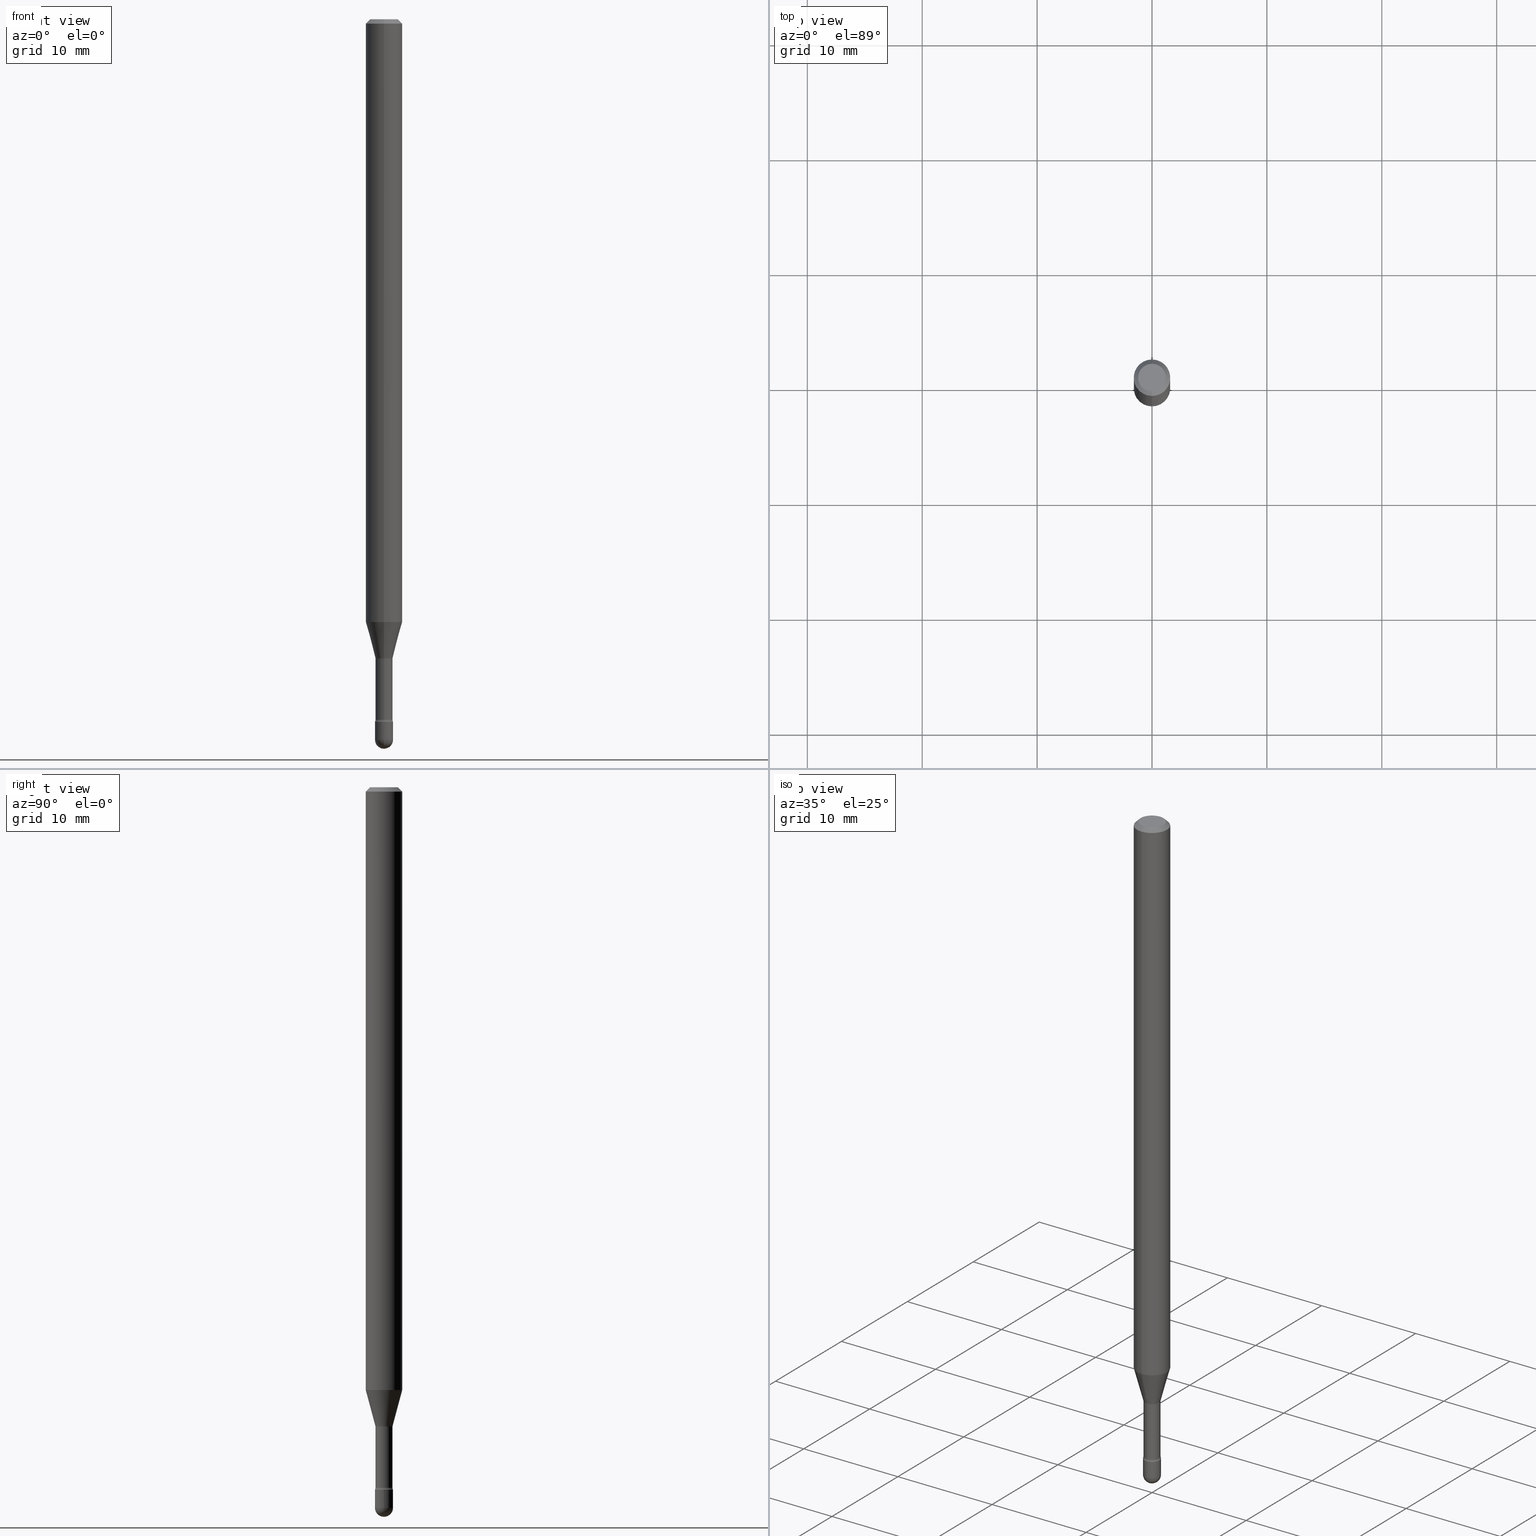
[diagram: canonical four-view strip — front | top / right | iso, engineering-drawing reading convention]
A machine part, canonical four-view strip (front | top / right | iso — engineering-drawing reading convention). The complete STEP part file that produces these views, byte-faithful:
ISO-10303-21;
HEADER;
FILE_DESCRIPTION (( 'STEP AP203' ),
    '1' );
FILE_NAME ('03845.STEP',
    '2024-04-09T20:43:29',
    ( '' ),
    ( '' ),
    'SwSTEP 2.0',
    'SolidWorks 2023',
    '' );
FILE_SCHEMA (( 'CONFIG_CONTROL_DESIGN' ));
ENDSEC;

DATA;
#1 = VECTOR ( 'NONE', #555, 39.37007874015748143 ) ;
#2 = CONICAL_SURFACE ( 'NONE', #314, 0.06250000000000000000, 0.7853981633974483900 ) ;
#3 = CARTESIAN_POINT ( 'NONE',  ( 5.350888010977423347E-29, -7.639718431393304776E-15, -2.188092501787273214 ) ) ;
#4 = DIRECTION ( 'NONE',  ( -1.000000000000000000, 6.982962677686265922E-15, -4.883557194083112901E-29 ) ) ;
#5 = EDGE_CURVE ( 'NONE', #377, #417, #144, .T. ) ;
#6 = ORIENTED_EDGE ( 'NONE', *, *, #319, .F. ) ;
#7 = TOROIDAL_SURFACE ( 'NONE', #420, 0.04415000000000002950, 0.01500000000000001159 ) ;
#8 = MANIFOLD_SOLID_BREP ( 'Body-Move/Copy2[2]', #532 ) ;
#9 = DIMENSIONAL_EXPONENTS ( 1.000000000000000000, 0.000000000000000000, 0.000000000000000000, 0.000000000000000000, 0.000000000000000000, 0.000000000000000000, 0.000000000000000000 ) ;
#10 = DATE_AND_TIME ( #92, #375 ) ;
#11 = COORDINATED_UNIVERSAL_TIME_OFFSET ( 5, 0, .BEHIND. ) ;
#12 = CC_DESIGN_PERSON_AND_ORGANIZATION_ASSIGNMENT ( #44, #398, ( #110 ) ) ;
#13 = CALENDAR_DATE ( 2024, 9, 4 ) ;
#14 = CARTESIAN_POINT ( 'NONE',  ( -2.071224423039476583E-16, -0.02966111260567161692, -2.188092501787273214 ) ) ;
#15 = VECTOR ( 'NONE', #407, 39.37007874015748143 ) ;
#16 = DIRECTION ( 'NONE',  ( 1.000000000000000000, -6.982962677686270655E-15, 0.000000000000000000 ) ) ;
#17 = DIRECTION ( 'NONE',  ( 6.982962677686265922E-15, 1.000000000000000000, -3.483106191921935554E-15 ) ) ;
#18 = APPROVAL ( #485, 'UNSPECIFIED' ) ;
#19 = MANIFOLD_SOLID_BREP ( 'Body-Move/Copy2[1]', #125 ) ;
#20 = CARTESIAN_POINT ( 'NONE',  ( -2.035533620544960895E-16, -0.02915000000000839489, -2.399783525791634897 ) ) ;
#21 = CARTESIAN_POINT ( 'NONE',  ( 6.037862482471103495E-29, -8.620467425603728566E-15, -2.469000000000000306 ) ) ;
#22 = ADVANCED_FACE ( 'NONE', ( #278 ), #486, .T. ) ;
#23 = CIRCLE ( 'NONE', #384, 0.03099999999999999978 ) ;
#24 = LINE ( 'NONE', #248, #45 ) ;
#25 = EDGE_CURVE ( 'NONE', #67, #296, #52, .T. ) ;
#26 = EDGE_LOOP ( 'NONE', ( #179, #190, #203, #259 ) ) ;
#27 = ORIENTED_EDGE ( 'NONE', *, *, #130, .F. ) ;
#28 = DIRECTION ( 'NONE',  ( -2.445457861862203003E-29, 3.491497011736498785E-15, 1.000000000000000000 ) ) ;
#29 = CARTESIAN_POINT ( 'NONE',  ( 0.000000000000000000, 0.000000000000000000, 0.000000000000000000 ) ) ;
#30 = CIRCLE ( 'NONE', #468, 0.04749999999999999362 ) ;
#31 = CARTESIAN_POINT ( 'NONE',  ( 6.037862482471103495E-29, -8.620467425603728566E-15, -2.469000000000000306 ) ) ;
#32 = VERTEX_POINT ( 'NONE', #290 ) ;
#33 = CARTESIAN_POINT ( 'NONE',  ( 5.360405966687044004E-29, -7.653239065644566278E-15, -2.191974787463811136 ) ) ;
#34 = ORIENTED_EDGE ( 'NONE', *, *, #260, .T. ) ;
#35 = ORIENTED_EDGE ( 'NONE', *, *, #349, .T. ) ;
#36 = SPHERICAL_SURFACE ( 'NONE', #279, 0.03099999999999987488 ) ;
#37 = CIRCLE ( 'NONE', #135, 0.01500000000000002720 ) ;
#38 = DIRECTION ( 'NONE',  ( -2.445457861862202723E-29, 3.491497011736498785E-15, 1.000000000000000000 ) ) ;
#39 = EDGE_CURVE ( 'NONE', #247, #72, #57, .T. ) ;
#40 = CARTESIAN_POINT ( 'NONE',  ( 5.360381977007107871E-29, -7.653273420231644262E-15, -2.191974787463811136 ) ) ;
#41 = FACE_OUTER_BOUND ( 'NONE', #26, .T. ) ;
#42 = EDGE_CURVE ( 'NONE', #441, #292, #340, .T. ) ;
#43 =( NAMED_UNIT ( * ) SI_UNIT ( $, .STERADIAN. ) SOLID_ANGLE_UNIT ( ) );
#44 = PERSON_AND_ORGANIZATION ( #445, #360 ) ;
#45 = VECTOR ( 'NONE', #339, 39.37007874015748143 ) ;
#46 = AXIS2_PLACEMENT_3D ( 'NONE', #257, #511, #205 ) ;
#47 = APPROVAL_DATE_TIME ( #399, #137 ) ;
#48 = EDGE_CURVE ( 'NONE', #72, #441, #108, .T. ) ;
#49 = CARTESIAN_POINT ( 'NONE',  ( 3.137046178381377884E-16, 0.04414999999999234814, -2.191974787463811580 ) ) ;
#50 = VERTEX_POINT ( 'NONE', #378 ) ;
#51 = VECTOR ( 'NONE', #28, 39.37007874015748143 ) ;
#52 = CIRCLE ( 'NONE', #383, 0.03099999999999987488 ) ;
#53 = AXIS2_PLACEMENT_3D ( 'NONE', #161, #474, #386 ) ;
#54 = ORIENTED_EDGE ( 'NONE', *, *, #330, .F. ) ;
#55 = LINE ( 'NONE', #106, #15 ) ;
#56 = ORIENTED_EDGE ( 'NONE', *, *, #280, .T. ) ;
#57 = LINE ( 'NONE', #242, #184 ) ;
#58 = ORIENTED_EDGE ( 'NONE', *, *, #39, .F. ) ;
#59 = CARTESIAN_POINT ( 'NONE',  ( 0.03099999999999999978, -8.728703347107863365E-15, -2.469000000000000306 ) ) ;
#60 = DIRECTION ( 'NONE',  ( -6.982962677686266711E-15, -1.000000000000000000, 3.491497011736501152E-15 ) ) ;
#61 = DIRECTION ( 'NONE',  ( 1.000000000000000000, -6.982962677686270655E-15, 0.000000000000000000 ) ) ;
#62 = DIRECTION ( 'NONE',  ( -2.445457861862202723E-29, 3.491497011736498785E-15, 1.000000000000000000 ) ) ;
#63 = EDGE_LOOP ( 'NONE', ( #521, #506, #102, #80 ) ) ;
#64 = CARTESIAN_POINT ( 'NONE',  ( 6.037862482471103495E-29, -8.620467425603728566E-15, -2.469000000000000306 ) ) ;
#65 = AXIS2_PLACEMENT_3D ( 'NONE', #287, #322, #154 ) ;
#66 = CIRCLE ( 'NONE', #139, 0.06250000000000000000 ) ;
#67 = VERTEX_POINT ( 'NONE', #70 ) ;
#68 = ORIENTED_EDGE ( 'NONE', *, *, #446, .T. ) ;
#69 = APPROVAL ( #271, 'UNSPECIFIED' ) ;
#70 = CARTESIAN_POINT ( 'NONE',  ( 6.114997523211070133E-29, -8.726805144569186876E-15, -2.500000000000000000 ) ) ;
#71 = ORIENTED_EDGE ( 'NONE', *, *, #42, .T. ) ;
#72 = VERTEX_POINT ( 'NONE', #187 ) ;
#73 = ORIENTED_EDGE ( 'NONE', *, *, #319, .T. ) ;
#74 = ADVANCED_FACE ( 'NONE', ( #286 ), #413, .T. ) ;
#75 = AXIS2_PLACEMENT_3D ( 'NONE', #552, #381, #409 ) ;
#76 = CIRCLE ( 'NONE', #272, 0.03099999999999999978 ) ;
#77 = VERTEX_POINT ( 'NONE', #497 ) ;
#78 = SECURITY_CLASSIFICATION ( '', '', #273 ) ;
#79 = FACE_OUTER_BOUND ( 'NONE', #451, .T. ) ;
#80 = ORIENTED_EDGE ( 'NONE', *, *, #48, .F. ) ;
#81 = APPLICATION_PROTOCOL_DEFINITION ( 'international standard', 'config_control_design', 1994, #267 ) ;
#82 = ADVANCED_FACE ( 'NONE', ( #369 ), #543, .F. ) ;
#83 = ADVANCED_FACE ( 'NONE', ( #327 ), #202, .T. ) ;
#84 = AXIS2_PLACEMENT_3D ( 'NONE', #396, #536, #60 ) ;
#85 = CYLINDRICAL_SURFACE ( 'NONE', #390, 0.06250000000000000000 ) ;
#86 = ORIENTED_EDGE ( 'NONE', *, *, #387, .F. ) ;
#87 = CARTESIAN_POINT ( 'NONE',  ( -0.03099999999999999978, -8.291963256013958569E-15, -2.469000000000000306 ) ) ;
#88 =( NAMED_UNIT ( * ) PLANE_ANGLE_UNIT ( ) SI_UNIT ( $, .RADIAN. ) );
#89 = CIRCLE ( 'NONE', #357, 0.03099999999999987488 ) ;
#90 = AXIS2_PLACEMENT_3D ( 'NONE', #437, #350, #189 ) ;
#91 = CARTESIAN_POINT ( 'NONE',  ( 6.037862482471103495E-29, -8.620467425603728566E-15, -2.469000000000000306 ) ) ;
#92 = CALENDAR_DATE ( 2024, 9, 4 ) ;
#93 = ORIENTED_EDGE ( 'NONE', *, *, #333, .F. ) ;
#94 = PERSON_AND_ORGANIZATION ( #445, #360 ) ;
#95 = FACE_OUTER_BOUND ( 'NONE', #168, .T. ) ;
#96 = DESIGN_CONTEXT ( 'detailed design', #267, 'design' ) ;
#97 = ORIENTED_EDGE ( 'NONE', *, *, #472, .F. ) ;
#98 = DATE_AND_TIME ( #13, #342 ) ;
#99 = VERTEX_POINT ( 'NONE', #548 ) ;
#100 = ORIENTED_EDGE ( 'NONE', *, *, #469, .T. ) ;
#101 = DIRECTION ( 'NONE',  ( -6.982962677686265922E-15, -1.000000000000000000, 3.491497011736498785E-15 ) ) ;
#102 = ORIENTED_EDGE ( 'NONE', *, *, #42, .F. ) ;
#103 = AXIS2_PLACEMENT_3D ( 'NONE', #261, #38, #353 ) ;
#104 = ORIENTED_EDGE ( 'NONE', *, *, #423, .F. ) ;
#105 = DIRECTION ( 'NONE',  ( -2.445457861862202723E-29, 3.491497011736498785E-15, 1.000000000000000000 ) ) ;
#106 = CARTESIAN_POINT ( 'NONE',  ( 4.440892098500625669E-16, 0.06250000000000000000, 2.598548356577148892E-16 ) ) ;
#107 = ORIENTED_EDGE ( 'NONE', *, *, #376, .T. ) ;
#108 = LINE ( 'NONE', #367, #51 ) ;
#109 = DIRECTION ( 'NONE',  ( 6.982962677686265922E-15, 1.000000000000000000, -3.491497011736498785E-15 ) ) ;
#110 = PRODUCT ( '03845', '03845', '', ( #352 ) ) ;
#111 = ORIENTED_EDGE ( 'NONE', *, *, #25, .F. ) ;
#112 = EDGE_CURVE ( 'NONE', #482, #516, #132, .T. ) ;
#113 = ORIENTED_EDGE ( 'NONE', *, *, #25, .T. ) ;
#114 = DIRECTION ( 'NONE',  ( 1.839019923739595582E-15, 0.2588190451025242922, 0.9659258262890673130 ) ) ;
#115 = FACE_OUTER_BOUND ( 'NONE', #509, .T. ) ;
#116 = ADVANCED_BREP_SHAPE_REPRESENTATION ( '03845', ( #19, #8, #527 ), #127 ) ;
#117 = AXIS2_PLACEMENT_3D ( 'NONE', #195, #325, #17 ) ;
#118 = AXIS2_PLACEMENT_3D ( 'NONE', #120, #414, #380 ) ;
#119 = ORIENTED_EDGE ( 'NONE', *, *, #253, .T. ) ;
#120 = CARTESIAN_POINT ( 'NONE',  ( -3.082978022197901986E-16, -0.04415000000000839780, -2.399783525791634453 ) ) ;
#121 = CARTESIAN_POINT ( 'NONE',  ( -2.035533620545547117E-16, -0.02915000000000000577, 5.798505367833650763E-16 ) ) ;
#122 = DIRECTION ( 'NONE',  ( -2.445457861862202723E-29, 3.491497011736498785E-15, 1.000000000000000000 ) ) ;
#123 = EDGE_LOOP ( 'NONE', ( #297, #425, #71, #467 ) ) ;
#124 = EDGE_CURVE ( 'NONE', #418, #458, #24, .T. ) ;
#125 = CLOSED_SHELL ( 'NONE', ( #170, #512, #83, #405, #74 ) ) ;
#126 = AXIS2_PLACEMENT_3D ( 'NONE', #225, #178, #230 ) ;
#127 =( GEOMETRIC_REPRESENTATION_CONTEXT ( 3 ) GLOBAL_UNCERTAINTY_ASSIGNED_CONTEXT ( ( #212 ) ) GLOBAL_UNIT_ASSIGNED_CONTEXT ( ( #214, #88, #43 ) ) REPRESENTATION_CONTEXT ( 'NONE', 'WORKASPACE' ) );
#128 = LINE ( 'NONE', #566, #159 ) ;
#129 = FACE_OUTER_BOUND ( 'NONE', #470, .T. ) ;
#130 = EDGE_CURVE ( 'NONE', #67, #516, #89, .T. ) ;
#131 = DIRECTION ( 'NONE',  ( -2.445457861862202723E-29, 3.491497011736498785E-15, 1.000000000000000000 ) ) ;
#132 = CIRCLE ( 'NONE', #277, 0.03099999999999999978 ) ;
#133 = CARTESIAN_POINT ( 'NONE',  ( -4.364351673553912750E-16, -0.06250000000000005551, -0.01499999999999986587 ) ) ;
#134 = VECTOR ( 'NONE', #263, 39.37007874015748143 ) ;
#135 = AXIS2_PLACEMENT_3D ( 'NONE', #241, #275, #542 ) ;
#136 = ORIENTED_EDGE ( 'NONE', *, *, #222, .T. ) ;
#137 = APPROVAL ( #181, 'UNSPECIFIED' ) ;
#138 = APPROVAL_ROLE ( '' ) ;
#139 = AXIS2_PLACEMENT_3D ( 'NONE', #226, #351, #484 ) ;
#140 = LOCAL_TIME ( 16, 43, 29.00000000000000000, #515 ) ;
#141 = CARTESIAN_POINT ( 'NONE',  ( 6.037862482471103495E-29, -8.620467425603728566E-15, -2.469000000000000306 ) ) ;
#142 = CC_DESIGN_PERSON_AND_ORGANIZATION_ASSIGNMENT ( #326, #281, ( #449 ) ) ;
#143 = CARTESIAN_POINT ( 'NONE',  ( 5.868595753920427457E-29, -8.378799397564700895E-15, -2.399783525791634897 ) ) ;
#144 = LINE ( 'NONE', #121, #557 ) ;
#145 = PRODUCT_DEFINITION_SHAPE ( 'NONE', 'NONE',  #449 ) ;
#146 = DIRECTION ( 'NONE',  ( -2.445468806185136597E-29, 3.491481338843145583E-15, 1.000000000000000000 ) ) ;
#147 = DIRECTION ( 'NONE',  ( 1.000000000000000000, -6.982962677686270655E-15, 0.000000000000000000 ) ) ;
#148 = ORIENTED_EDGE ( 'NONE', *, *, #311, .T. ) ;
#149 = AXIS2_PLACEMENT_3D ( 'NONE', #204, #424, #560 ) ;
#150 = AXIS2_PLACEMENT_3D ( 'NONE', #169, #302, #565 ) ;
#151 = CARTESIAN_POINT ( 'NONE',  ( 2.023473273839480459E-45, -2.889159087128959669E-31, -8.274628760911105349E-17 ) ) ;
#152 = DIRECTION ( 'NONE',  ( -2.445468806185136597E-29, 3.491481338843145583E-15, 1.000000000000000000 ) ) ;
#153 = EDGE_CURVE ( 'NONE', #50, #441, #155, .T. ) ;
#154 = DIRECTION ( 'NONE',  ( -6.982962677686265133E-15, -1.000000000000000000, 0.000000000000000000 ) ) ;
#155 = LINE ( 'NONE', #335, #1 ) ;
#156 = CARTESIAN_POINT ( 'NONE',  ( 2.023473273839480459E-45, -2.889159087128959669E-31, -8.274628760911105349E-17 ) ) ;
#157 = ORIENTED_EDGE ( 'NONE', *, *, #446, .F. ) ;
#158 = DIRECTION ( 'NONE',  ( 1.000000000000000000, -6.982962677686265922E-15, 4.883557194083112340E-29 ) ) ;
#159 = VECTOR ( 'NONE', #303, 39.37007874015748143 ) ;
#160 = CC_DESIGN_APPROVAL ( #18, ( #449 ) ) ;
#161 = CARTESIAN_POINT ( 'NONE',  ( 6.037862482471103495E-29, -8.620467425603728566E-15, -2.469000000000000306 ) ) ;
#162 = ADVANCED_FACE ( 'NONE', ( #115 ), #215, .F. ) ;
#163 = CARTESIAN_POINT ( 'NONE',  ( 3.668186792793324614E-31, -5.237245517604777982E-17, -0.01500000000000008271 ) ) ;
#164 = EDGE_LOOP ( 'NONE', ( #524, #100, #157, #361, #107 ) ) ;
#165 = ORIENTED_EDGE ( 'NONE', *, *, #112, .F. ) ;
#166 = PERSON_AND_ORGANIZATION ( #445, #360 ) ;
#167 = AXIS2_PLACEMENT_3D ( 'NONE', #372, #285, #551 ) ;
#168 = EDGE_LOOP ( 'NONE', ( #86, #97 ) ) ;
#169 = CARTESIAN_POINT ( 'NONE',  ( 5.350888010977423347E-29, -7.639718431393304776E-15, -2.188092501787273214 ) ) ;
#170 = ADVANCED_FACE ( 'NONE', ( #252 ), #256, .T. ) ;
#171 = CARTESIAN_POINT ( 'NONE',  ( -2.202682480855702151E-16, -0.03100000000000856237, -2.469000000000000306 ) ) ;
#172 = DIRECTION ( 'NONE',  ( -6.982962677686265133E-15, -1.000000000000000000, 0.000000000000000000 ) ) ;
#173 = APPLICATION_PROTOCOL_DEFINITION ( 'international standard', 'config_control_design', 1994, #334 ) ;
#174 = DIRECTION ( 'NONE',  ( -2.445457861862202723E-29, 3.491497011736498785E-15, 1.000000000000000000 ) ) ;
#175 = CIRCLE ( 'NONE', #348, 0.02915000000000001618 ) ;
#176 = EDGE_CURVE ( 'NONE', #32, #377, #175, .T. ) ;
#177 = CIRCLE ( 'NONE', #46, 0.02915000000000001618 ) ;
#178 = DIRECTION ( 'NONE',  ( -2.445457861862202723E-29, 3.491497011736498785E-15, 1.000000000000000000 ) ) ;
#179 = ORIENTED_EDGE ( 'NONE', *, *, #475, .F. ) ;
#180 = CARTESIAN_POINT ( 'NONE',  ( -0.03099999999999999978, 2.202682480856310560E-16, -1.524869877979020612E-30 ) ) ;
#181 = APPROVAL_STATUS ( 'not_yet_approved' ) ;
#182 = CARTESIAN_POINT ( 'NONE',  ( -1.169113584055446105E-44, 1.669184350826100908E-30, 4.780733988912460139E-16 ) ) ;
#183 = ORIENTED_EDGE ( 'NONE', *, *, #260, .F. ) ;
#184 = VECTOR ( 'NONE', #192, 39.37007874015748854 ) ;
#185 = AXIS2_PLACEMENT_3D ( 'NONE', #213, #122, #295 ) ;
#186 = ADVANCED_FACE ( 'NONE', ( #370 ), #406, .T. ) ;
#187 = CARTESIAN_POINT ( 'NONE',  ( -4.364351673553412809E-16, -0.06250000000000724421, -2.065536105567578051 ) ) ;
#188 = APPROVAL_DATE_TIME ( #495, #69 ) ;
#189 = DIRECTION ( 'NONE',  ( -6.982962677686265922E-15, -1.000000000000000000, 0.000000000000000000 ) ) ;
#190 = ORIENTED_EDGE ( 'NONE', *, *, #176, .T. ) ;
#191 = CARTESIAN_POINT ( 'NONE',  ( 2.164718430083341860E-16, 0.03099999999999131575, -2.469000000000000306 ) ) ;
#192 = DIRECTION ( 'NONE',  ( -1.807323732225325406E-15, -0.2588190451025175198, 0.9659258262890690894 ) ) ;
#193 = DIRECTION ( 'NONE',  ( 1.000000000000000000, -7.105427357601001070E-15, 4.926315700479668917E-29 ) ) ;
#194 = CYLINDRICAL_SURFACE ( 'NONE', #167, 0.02915000000000000577 ) ;
#195 = CARTESIAN_POINT ( 'NONE',  ( 3.668186792793324614E-31, -5.237245517604777982E-17, -0.01500000000000008271 ) ) ;
#196 = AXIS2_PLACEMENT_3D ( 'NONE', #49, #193, #276 ) ;
#197 = AXIS2_PLACEMENT_3D ( 'NONE', #141, #236, #16 ) ;
#198 = DIRECTION ( 'NONE',  ( -2.445457861862202723E-29, 3.491497011736498785E-15, 1.000000000000000000 ) ) ;
#199 = DIRECTION ( 'NONE',  ( -6.982962677686265133E-15, -1.000000000000000000, 0.000000000000000000 ) ) ;
#200 = DIRECTION ( 'NONE',  ( -7.105427357601001070E-15, -1.000000000000000000, 0.000000000000000000 ) ) ;
#201 = ADVANCED_FACE ( 'NONE', ( #95 ), #246, .F. ) ;
#202 = PLANE ( 'NONE',  #75 ) ;
#203 = ORIENTED_EDGE ( 'NONE', *, *, #5, .T. ) ;
#204 = CARTESIAN_POINT ( 'NONE',  ( 5.360405966687044004E-29, -7.653239065644566278E-15, -2.191974787463811136 ) ) ;
#205 = DIRECTION ( 'NONE',  ( -6.982962677686265922E-15, -1.000000000000000000, 0.000000000000000000 ) ) ;
#206 = DIRECTION ( 'NONE',  ( -2.445457861862202723E-29, 3.491497011736498785E-15, 1.000000000000000000 ) ) ;
#207 = CIRCLE ( 'NONE', #358, 0.01500000000000001159 ) ;
#208 = DIRECTION ( 'NONE',  ( -2.445468806185136597E-29, 3.491481338843145583E-15, 1.000000000000000000 ) ) ;
#209 = ORIENTED_EDGE ( 'NONE', *, *, #533, .T. ) ;
#210 = DIRECTION ( 'NONE',  ( -2.445457861862202723E-29, 3.491497011736498785E-15, 1.000000000000000000 ) ) ;
#211 = ORIENTED_EDGE ( 'NONE', *, *, #472, .T. ) ;
#212 = UNCERTAINTY_MEASURE_WITH_UNIT (LENGTH_MEASURE( 1.000000000000000082E-05 ), #214, 'distance_accuracy_value', 'NONE');
#213 = CARTESIAN_POINT ( 'NONE',  ( 5.886217073502321624E-29, -8.404033307249753606E-15, -2.407000000000000028 ) ) ;
#214 =( CONVERSION_BASED_UNIT ( 'INCH', #391 ) LENGTH_UNIT ( ) NAMED_UNIT ( #9 ) );
#215 = TOROIDAL_SURFACE ( 'NONE', #149, 0.04415000000000000174, 0.01500000000000002720 ) ;
#216 = DIRECTION ( 'NONE',  ( -6.982962677686265922E-15, -1.000000000000000000, 0.000000000000000000 ) ) ;
#217 = CIRCLE ( 'NONE', #534, 0.02914999999999999536 ) ;
#218 = DIRECTION ( 'NONE',  ( -2.445457861862202723E-29, 3.491497011736498785E-15, 1.000000000000000000 ) ) ;
#219 = ORIENTED_EDGE ( 'NONE', *, *, #549, .T. ) ;
#220 = CARTESIAN_POINT ( 'NONE',  ( 5.051181508320471471E-29, -7.211813140223045848E-15, -2.065536105567578051 ) ) ;
#221 = CYLINDRICAL_SURFACE ( 'NONE', #84, 0.02915000000000000577 ) ;
#222 = EDGE_CURVE ( 'NONE', #77, #513, #371, .T. ) ;
#223 = DIRECTION ( 'NONE',  ( -6.982962677686265922E-15, -1.000000000000000000, 3.491497011736498785E-15 ) ) ;
#224 = ORIENTED_EDGE ( 'NONE', *, *, #311, .F. ) ;
#225 = CARTESIAN_POINT ( 'NONE',  ( 3.668186792793324614E-31, -5.237245517604777982E-17, -0.01500000000000008271 ) ) ;
#226 = CARTESIAN_POINT ( 'NONE',  ( 5.051181508320471471E-29, -7.211813140223045848E-15, -2.065536105567578051 ) ) ;
#227 = AXIS2_PLACEMENT_3D ( 'NONE', #91, #146, #147 ) ;
#228 = ADVANCED_FACE ( 'NONE', ( #234 ), #517, .T. ) ;
#229 = ORIENTED_EDGE ( 'NONE', *, *, #48, .T. ) ;
#230 = DIRECTION ( 'NONE',  ( -6.982962677686265922E-15, -1.000000000000000000, 3.483106191921935554E-15 ) ) ;
#231 = PERSON_AND_ORGANIZATION ( #445, #360 ) ;
#232 = EDGE_CURVE ( 'NONE', #50, #537, #313, .T. ) ;
#233 = DIRECTION ( 'NONE',  ( -2.445457861862203003E-29, 3.491497011736498785E-15, 1.000000000000000000 ) ) ;
#234 = FACE_OUTER_BOUND ( 'NONE', #522, .T. ) ;
#235 = EDGE_LOOP ( 'NONE', ( #250, #183, #498, #119 ) ) ;
#236 = DIRECTION ( 'NONE',  ( -2.445468806185136597E-29, 3.491481338843145583E-15, 1.000000000000000000 ) ) ;
#237 = EDGE_LOOP ( 'NONE', ( #473, #432, #489, #58 ) ) ;
#238 = CIRCLE ( 'NONE', #435, 0.02966111260566397720 ) ;
#239 = PRODUCT_DEFINITION_FORMATION_WITH_SPECIFIED_SOURCE ( 'ANY', '', #110, .NOT_KNOWN. ) ;
#240 = PERSON_AND_ORGANIZATION ( #445, #360 ) ;
#241 = CARTESIAN_POINT ( 'NONE',  ( -3.082978022197950304E-16, -0.04415000000000764840, -2.191974787463810692 ) ) ;
#242 = CARTESIAN_POINT ( 'NONE',  ( -2.071224423039476583E-16, -0.02966111260567161692, -2.188092501787273214 ) ) ;
#243 = CALENDAR_DATE ( 2024, 9, 4 ) ;
#244 = ORIENTED_EDGE ( 'NONE', *, *, #376, .F. ) ;
#245 = CARTESIAN_POINT ( 'NONE',  ( 3.668186792793324614E-31, -5.237245517604777982E-17, -0.01500000000000008271 ) ) ;
#246 = PLANE ( 'NONE',  #544 ) ;
#247 = VERTEX_POINT ( 'NONE', #14 ) ;
#248 = CARTESIAN_POINT ( 'NONE',  ( 0.03099999999999999978, -2.164718430082742572E-16, 1.511614800496739984E-30 ) ) ;
#249 = EDGE_CURVE ( 'NONE', #516, #418, #561, .T. ) ;
#250 = ORIENTED_EDGE ( 'NONE', *, *, #153, .F. ) ;
#251 = DIRECTION ( 'NONE',  ( 1.000000000000000000, -7.105427357601001070E-15, 4.926315700479668917E-29 ) ) ;
#252 = FACE_OUTER_BOUND ( 'NONE', #164, .T. ) ;
#253 = EDGE_CURVE ( 'NONE', #292, #441, #408, .T. ) ;
#254 = ORIENTED_EDGE ( 'NONE', *, *, #5, .F. ) ;
#255 = LINE ( 'NONE', #338, #427 ) ;
#256 = CYLINDRICAL_SURFACE ( 'NONE', #478, 0.03099999999999999978 ) ;
#257 = CARTESIAN_POINT ( 'NONE',  ( 5.868569489914549591E-29, -8.378837009115971739E-15, -2.399783525791634897 ) ) ;
#258 = CONICAL_SURFACE ( 'NONE', #150, 0.02966111260566397720, 0.2617993877991495744 ) ;
#259 = ORIENTED_EDGE ( 'NONE', *, *, #280, .F. ) ;
#260 = EDGE_CURVE ( 'NONE', #537, #50, #30, .T. ) ;
#261 = CARTESIAN_POINT ( 'NONE',  ( 5.360381977007107871E-29, -7.653273420231644262E-15, -2.191974787463811136 ) ) ;
#262 = APPROVAL_ROLE ( '' ) ;
#263 = DIRECTION ( 'NONE',  ( -2.445468806185136877E-29, 3.491481338843145188E-15, 1.000000000000000000 ) ) ;
#264 = DIRECTION ( 'NONE',  ( 6.982962677686265922E-15, 1.000000000000000000, 0.000000000000000000 ) ) ;
#265 = VECTOR ( 'NONE', #233, 39.37007874015748143 ) ;
#266 = CARTESIAN_POINT ( 'NONE',  ( 6.037862482471103495E-29, -8.620467425603728566E-15, -2.469000000000000306 ) ) ;
#267 = APPLICATION_CONTEXT ( 'configuration controlled 3d designs of mechanical parts and assemblies' ) ;
#268 = DIRECTION ( 'NONE',  ( -6.982962677686265922E-15, -1.000000000000000000, 4.370956789862821150E-15 ) ) ;
#269 = EDGE_CURVE ( 'NONE', #537, #292, #128, .T. ) ;
#270 = LINE ( 'NONE', #180, #134 ) ;
#271 = APPROVAL_STATUS ( 'not_yet_approved' ) ;
#272 = AXIS2_PLACEMENT_3D ( 'NONE', #31, #208, #554 ) ;
#273 = SECURITY_CLASSIFICATION_LEVEL ( 'unclassified' ) ;
#274 = CARTESIAN_POINT ( 'NONE',  ( 5.868569489914549591E-29, -8.378837009115971739E-15, -2.399783525791634897 ) ) ;
#275 = DIRECTION ( 'NONE',  ( -1.000000000000000000, 6.982962677686265922E-15, -4.883557194083112340E-29 ) ) ;
#276 = DIRECTION ( 'NONE',  ( 7.105427357601001859E-15, 1.000000000000000000, 0.000000000000000000 ) ) ;
#277 = AXIS2_PLACEMENT_3D ( 'NONE', #284, #152, #61 ) ;
#278 = FACE_OUTER_BOUND ( 'NONE', #123, .T. ) ;
#279 = AXIS2_PLACEMENT_3D ( 'NONE', #266, #4, #264 ) ;
#280 = EDGE_CURVE ( 'NONE', #513, #417, #518, .T. ) ;
#281 = PERSON_AND_ORGANIZATION_ROLE ( 'creator' ) ;
#282 = ORIENTED_EDGE ( 'NONE', *, *, #533, .F. ) ;
#283 = LINE ( 'NONE', #531, #265 ) ;
#284 = CARTESIAN_POINT ( 'NONE',  ( 6.037862482471103495E-29, -8.620467425603728566E-15, -2.469000000000000306 ) ) ;
#285 = DIRECTION ( 'NONE',  ( -2.445457861862202723E-29, 3.491497011736498785E-15, 1.000000000000000000 ) ) ;
#286 = FACE_OUTER_BOUND ( 'NONE', #421, .T. ) ;
#287 = CARTESIAN_POINT ( 'NONE',  ( 5.350888010977423347E-29, -7.639718431393304776E-15, -2.188092501787273214 ) ) ;
#288 = CIRCLE ( 'NONE', #454, 0.03099999999999999978 ) ;
#289 = ORIENTED_EDGE ( 'NONE', *, *, #124, .T. ) ;
#290 = CARTESIAN_POINT ( 'NONE',  ( 2.136957277799089577E-16, 0.02914999999999163746, -2.399783525791634897 ) ) ;
#291 = EDGE_CURVE ( 'NONE', #77, #247, #238, .T. ) ;
#292 = VERTEX_POINT ( 'NONE', #440 ) ;
#293 = ADVANCED_FACE ( 'NONE', ( #41 ), #221, .T. ) ;
#294 = ORIENTED_EDGE ( 'NONE', *, *, #249, .T. ) ;
#295 = DIRECTION ( 'NONE',  ( -6.982962677686265922E-15, -1.000000000000000000, 0.000000000000000000 ) ) ;
#296 = VERTEX_POINT ( 'NONE', #191 ) ;
#297 = ORIENTED_EDGE ( 'NONE', *, *, #232, .F. ) ;
#298 = DIRECTION ( 'NONE',  ( -2.445468806185136597E-29, 3.491481338843145583E-15, 1.000000000000000000 ) ) ;
#299 = AXIS2_PLACEMENT_3D ( 'NONE', #182, #62, #465 ) ;
#300 = AXIS2_PLACEMENT_3D ( 'NONE', #33, #210, #500 ) ;
#301 = FACE_OUTER_BOUND ( 'NONE', #395, .T. ) ;
#302 = DIRECTION ( 'NONE',  ( -2.445457861862202723E-29, 3.491497011736498785E-15, 1.000000000000000000 ) ) ;
#303 = DIRECTION ( 'NONE',  ( 4.937700262164548042E-15, 0.7071067811865451302, -0.7071067811865499042 ) ) ;
#304 = ADVANCED_FACE ( 'NONE', ( #318 ), #328, .F. ) ;
#305 = DIRECTION ( 'NONE',  ( 2.445457861862202723E-29, -3.491497011736498785E-15, -1.000000000000000000 ) ) ;
#306 = AXIS2_PLACEMENT_3D ( 'NONE', #220, #355, #268 ) ;
#307 = CARTESIAN_POINT ( 'NONE',  ( 5.886243416487624138E-29, -8.403995582595451079E-15, -2.407000000000000028 ) ) ;
#308 = ORIENTED_EDGE ( 'NONE', *, *, #130, .T. ) ;
#309 = DIRECTION ( 'NONE',  ( -6.982962677686265922E-15, -1.000000000000000000, 3.491497011736498785E-15 ) ) ;
#310 = DIRECTION ( 'NONE',  ( 1.000000000000000000, -6.982962677686270655E-15, 0.000000000000000000 ) ) ;
#311 = EDGE_CURVE ( 'NONE', #247, #417, #37, .T. ) ;
#312 = PERSON_AND_ORGANIZATION_ROLE ( 'creator' ) ;
#313 = CIRCLE ( 'NONE', #443, 0.04749999999999999362 ) ;
#314 = AXIS2_PLACEMENT_3D ( 'NONE', #163, #305, #433 ) ;
#315 = APPROVAL_PERSON_ORGANIZATION ( #166, #18, #262 ) ;
#316 = APPROVAL_DATE_TIME ( #523, #18 ) ;
#317 = DIRECTION ( 'NONE',  ( -2.445468806185136597E-29, 3.491481338843145583E-15, 1.000000000000000000 ) ) ;
#318 = FACE_OUTER_BOUND ( 'NONE', #507, .T. ) ;
#319 = EDGE_CURVE ( 'NONE', #32, #476, #207, .T. ) ;
#320 = ORIENTED_EDGE ( 'NONE', *, *, #39, .T. ) ;
#321 = PERSON_AND_ORGANIZATION ( #445, #360 ) ;
#322 = DIRECTION ( 'NONE',  ( -2.445457861862202723E-29, 3.491497011736498785E-15, 1.000000000000000000 ) ) ;
#323 = ORIENTED_EDGE ( 'NONE', *, *, #490, .F. ) ;
#324 = DIRECTION ( 'NONE',  ( -2.445457861862202723E-29, 3.491497011736498785E-15, 1.000000000000000000 ) ) ;
#325 = DIRECTION ( 'NONE',  ( 2.445457861862202723E-29, -3.491497011736498785E-15, -1.000000000000000000 ) ) ;
#326 = PERSON_AND_ORGANIZATION ( #445, #360 ) ;
#327 = FACE_OUTER_BOUND ( 'NONE', #547, .T. ) ;
#328 = TOROIDAL_SURFACE ( 'NONE', #452, 0.04415000000000002950, 0.01500000000000001159 ) ;
#329 = APPROVAL_PERSON_ORGANIZATION ( #231, #137, #138 ) ;
#330 = EDGE_CURVE ( 'NONE', #77, #558, #255, .T. ) ;
#331 = ORIENTED_EDGE ( 'NONE', *, *, #349, .F. ) ;
#332 = ORIENTED_EDGE ( 'NONE', *, *, #400, .T. ) ;
#333 = EDGE_CURVE ( 'NONE', #247, #77, #374, .T. ) ;
#334 = APPLICATION_CONTEXT ( 'configuration controlled 3d designs of mechanical parts and assemblies' ) ;
#335 = CARTESIAN_POINT ( 'NONE',  ( -4.287811248607203282E-16, -0.06250000000000005551, -0.01499999999999986587 ) ) ;
#336 = CC_DESIGN_PERSON_AND_ORGANIZATION_ASSIGNMENT ( #444, #539, ( #239 ) ) ;
#337 = ORIENTED_EDGE ( 'NONE', *, *, #112, .T. ) ;
#338 = CARTESIAN_POINT ( 'NONE',  ( 2.107548809652222305E-16, 0.02966111260565633748, -2.188092501787273214 ) ) ;
#339 = DIRECTION ( 'NONE',  ( -2.445468806185136877E-29, 3.491481338843145188E-15, 1.000000000000000000 ) ) ;
#340 = CIRCLE ( 'NONE', #450, 0.06250000000000000000 ) ;
#341 = CIRCLE ( 'NONE', #306, 0.06250000000000000000 ) ;
#342 = LOCAL_TIME ( 16, 43, 29.00000000000000000, #535 ) ;
#343 = ORIENTED_EDGE ( 'NONE', *, *, #291, .F. ) ;
#344 = ORIENTED_EDGE ( 'NONE', *, *, #249, .F. ) ;
#345 = FACE_OUTER_BOUND ( 'NONE', #385, .T. ) ;
#346 = CARTESIAN_POINT ( 'NONE',  ( 5.886243416487624138E-29, -8.403995582595451079E-15, -2.407000000000000028 ) ) ;
#347 = DIRECTION ( 'NONE',  ( 0.000000000000000000, 0.000000000000000000, 1.000000000000000000 ) ) ;
#348 = AXIS2_PLACEMENT_3D ( 'NONE', #274, #105, #459 ) ;
#349 = EDGE_CURVE ( 'NONE', #377, #99, #366, .T. ) ;
#350 = DIRECTION ( 'NONE',  ( -2.445457861862202723E-29, 3.491497011736498785E-15, 1.000000000000000000 ) ) ;
#351 = DIRECTION ( 'NONE',  ( -2.445457861862202723E-29, 3.491497011736498785E-15, 1.000000000000000000 ) ) ;
#352 = MECHANICAL_CONTEXT ( 'NONE', #334, 'mechanical' ) ;
#353 = DIRECTION ( 'NONE',  ( -6.982962677686265922E-15, -1.000000000000000000, 0.000000000000000000 ) ) ;
#354 = CALENDAR_DATE ( 2024, 9, 4 ) ;
#355 = DIRECTION ( 'NONE',  ( -2.445457861862202723E-29, 3.491497011736498785E-15, 1.000000000000000000 ) ) ;
#356 = ORIENTED_EDGE ( 'NONE', *, *, #222, .F. ) ;
#357 = AXIS2_PLACEMENT_3D ( 'NONE', #21, #419, #200 ) ;
#358 = AXIS2_PLACEMENT_3D ( 'NONE', #559, #251, #477 ) ;
#359 = FACE_OUTER_BOUND ( 'NONE', #235, .T. ) ;
#360 = ORGANIZATION ( 'UNSPECIFIED', 'UNSPECIFIED', '' ) ;
#361 = ORIENTED_EDGE ( 'NONE', *, *, #124, .F. ) ;
#362 = SHAPE_DEFINITION_REPRESENTATION ( #145, #116 ) ;
#363 = FACE_OUTER_BOUND ( 'NONE', #460, .T. ) ;
#364 = ORIENTED_EDGE ( 'NONE', *, *, #469, .F. ) ;
#365 = COORDINATED_UNIVERSAL_TIME_OFFSET ( 5, 0, .BEHIND. ) ;
#366 = CIRCLE ( 'NONE', #118, 0.01500000000000001159 ) ;
#367 = CARTESIAN_POINT ( 'NONE',  ( -4.364351673553916201E-16, -0.06250000000000000000, 6.962919621247772866E-16 ) ) ;
#368 = PERSON_AND_ORGANIZATION_ROLE ( 'classification_officer' ) ;
#369 = FACE_OUTER_BOUND ( 'NONE', #464, .T. ) ;
#370 = FACE_OUTER_BOUND ( 'NONE', #63, .T. ) ;
#371 = CIRCLE ( 'NONE', #196, 0.01500000000000002720 ) ;
#372 = CARTESIAN_POINT ( 'NONE',  ( -1.169113584055446105E-44, 1.669184350826100908E-30, 4.780733988912460139E-16 ) ) ;
#373 = CARTESIAN_POINT ( 'NONE',  ( 0.000000000000000000, 0.000000000000000000, 0.000000000000000000 ) ) ;
#374 = CIRCLE ( 'NONE', #545, 0.02966111260566397720 ) ;
#375 = LOCAL_TIME ( 16, 43, 29.00000000000000000, #11 ) ;
#376 = EDGE_CURVE ( 'NONE', #418, #296, #76, .T. ) ;
#377 = VERTEX_POINT ( 'NONE', #20 ) ;
#378 = CARTESIAN_POINT ( 'NONE',  ( -3.773273898774340269E-16, -0.04749999999999999362, 8.309982044837261809E-17 ) ) ;
#379 = ADVANCED_FACE ( 'NONE', ( #345 ), #194, .T. ) ;
#380 = DIRECTION ( 'NONE',  ( -6.982962677686266711E-15, -1.000000000000000000, 0.000000000000000000 ) ) ;
#381 = DIRECTION ( 'NONE',  ( -2.438088387897960049E-29, 3.491481338843145188E-15, 1.000000000000000000 ) ) ;
#382 = AXIS2_PLACEMENT_3D ( 'NONE', #505, #415, #109 ) ;
#383 = AXIS2_PLACEMENT_3D ( 'NONE', #64, #158, #457 ) ;
#384 = AXIS2_PLACEMENT_3D ( 'NONE', #307, #442, #310 ) ;
#385 = EDGE_LOOP ( 'NONE', ( #463, #392, #564, #254 ) ) ;
#386 = DIRECTION ( 'NONE',  ( 6.982962677686265922E-15, 1.000000000000000000, 0.000000000000000000 ) ) ;
#387 = EDGE_CURVE ( 'NONE', #99, #476, #480, .T. ) ;
#388 = CARTESIAN_POINT ( 'NONE',  ( 2.071232074741278920E-16, 0.02914999999999233482, -2.191974787463811136 ) ) ;
#389 = ORIENTED_EDGE ( 'NONE', *, *, #400, .F. ) ;
#390 = AXIS2_PLACEMENT_3D ( 'NONE', #528, #174, #223 ) ;
#391 = LENGTH_MEASURE_WITH_UNIT ( LENGTH_MEASURE( 0.02539999999999999897 ), #481 );
#392 = ORIENTED_EDGE ( 'NONE', *, *, #475, .T. ) ;
#393 = CC_DESIGN_PERSON_AND_ORGANIZATION_ASSIGNMENT ( #240, #368, ( #78 ) ) ;
#394 = DIRECTION ( 'NONE',  ( -2.445457861862202723E-29, 3.491497011736498785E-15, 1.000000000000000000 ) ) ;
#395 = EDGE_LOOP ( 'NONE', ( #111, #308, #165, #323 ) ) ;
#396 = CARTESIAN_POINT ( 'NONE',  ( -1.169113584055446105E-44, 1.669184350826100908E-30, 4.780733988912460139E-16 ) ) ;
#397 = TOROIDAL_SURFACE ( 'NONE', #300, 0.04415000000000000174, 0.01500000000000002720 ) ;
#398 = PERSON_AND_ORGANIZATION_ROLE ( 'design_owner' ) ;
#399 = DATE_AND_TIME ( #243, #487 ) ;
#400 = EDGE_CURVE ( 'NONE', #553, #458, #288, .T. ) ;
#401 = EDGE_CURVE ( 'NONE', #377, #32, #177, .T. ) ;
#402 = APPROVAL_ROLE ( '' ) ;
#403 = CARTESIAN_POINT ( 'NONE',  ( 5.868595753920427457E-29, -8.378799397564700895E-15, -2.399783525791634897 ) ) ;
#404 = DIRECTION ( 'NONE',  ( -6.982962677686266711E-15, -1.000000000000000000, 3.491497011736498785E-15 ) ) ;
#405 = ADVANCED_FACE ( 'NONE', ( #426 ), #562, .T. ) ;
#406 = CYLINDRICAL_SURFACE ( 'NONE', #299, 0.06250000000000000000 ) ;
#407 = DIRECTION ( 'NONE',  ( -2.445457861862203003E-29, 3.491497011736498785E-15, 1.000000000000000000 ) ) ;
#408 = CIRCLE ( 'NONE', #126, 0.06250000000000000000 ) ;
#409 = DIRECTION ( 'NONE',  ( 1.000000000000000000, -6.982962677686265922E-15, 4.876176775795935793E-29 ) ) ;
#410 = PRODUCT_RELATED_PRODUCT_CATEGORY ( 'detail', '', ( #110 ) ) ;
#411 = COORDINATED_UNIVERSAL_TIME_OFFSET ( 5, 0, .BEHIND. ) ;
#412 = ADVANCED_FACE ( 'NONE', ( #79 ), #397, .F. ) ;
#413 = CYLINDRICAL_SURFACE ( 'NONE', #466, 0.03099999999999999978 ) ;
#414 = DIRECTION ( 'NONE',  ( -1.000000000000000000, 6.982962677686265922E-15, -4.883557194083112340E-29 ) ) ;
#415 = DIRECTION ( 'NONE',  ( 2.445457861862202723E-29, -3.491497011736498785E-15, -1.000000000000000000 ) ) ;
#416 = CARTESIAN_POINT ( 'NONE',  ( 2.202682480856898508E-16, 0.03099999999999159678, -2.407000000000000473 ) ) ;
#417 = VERTEX_POINT ( 'NONE', #541 ) ;
#418 = VERTEX_POINT ( 'NONE', #59 ) ;
#419 = DIRECTION ( 'NONE',  ( -1.000000000000000000, 7.105427357601001070E-15, -4.926315508542082329E-29 ) ) ;
#420 = AXIS2_PLACEMENT_3D ( 'NONE', #403, #131, #309 ) ;
#421 = EDGE_LOOP ( 'NONE', ( #364, #337, #294, #289, #389 ) ) ;
#422 = DIRECTION ( 'NONE',  ( -2.445457861862202723E-29, 3.491497011736498785E-15, 1.000000000000000000 ) ) ;
#423 = EDGE_CURVE ( 'NONE', #558, #292, #55, .T. ) ;
#424 = DIRECTION ( 'NONE',  ( -2.445457861862202723E-29, 3.491497011736498785E-15, 1.000000000000000000 ) ) ;
#425 = ORIENTED_EDGE ( 'NONE', *, *, #153, .T. ) ;
#426 = FACE_OUTER_BOUND ( 'NONE', #455, .T. ) ;
#427 = VECTOR ( 'NONE', #114, 39.37007874015748854 ) ;
#428 = CC_DESIGN_SECURITY_CLASSIFICATION ( #78, ( #239 ) ) ;
#429 = ORIENTED_EDGE ( 'NONE', *, *, #401, .F. ) ;
#430 = EDGE_CURVE ( 'NONE', #72, #558, #341, .T. ) ;
#431 = DIRECTION ( 'NONE',  ( 1.000000000000000000, 0.000000000000000000, 0.000000000000000000 ) ) ;
#432 = ORIENTED_EDGE ( 'NONE', *, *, #330, .T. ) ;
#433 = DIRECTION ( 'NONE',  ( 6.982962677686265922E-15, 1.000000000000000000, -3.483106191921935554E-15 ) ) ;
#434 = CC_DESIGN_PERSON_AND_ORGANIZATION_ASSIGNMENT ( #94, #312, ( #239 ) ) ;
#435 = AXIS2_PLACEMENT_3D ( 'NONE', #3, #218, #172 ) ;
#436 = LOCAL_TIME ( 16, 43, 29.00000000000000000, #365 ) ;
#437 = CARTESIAN_POINT ( 'NONE',  ( 5.886217073502321624E-29, -8.404033307249753606E-15, -2.407000000000000028 ) ) ;
#438 = FACE_OUTER_BOUND ( 'NONE', #237, .T. ) ;
#439 = CARTESIAN_POINT ( 'NONE',  ( 3.840629472727447874E-16, 0.04749999999999999362, -2.485923956665947374E-16 ) ) ;
#440 = CARTESIAN_POINT ( 'NONE',  ( 4.440892098501133991E-16, 0.06249999999999993755, -0.01500000000000030129 ) ) ;
#441 = VERTEX_POINT ( 'NONE', #133 ) ;
#442 = DIRECTION ( 'NONE',  ( -2.445468806185136597E-29, 3.491481338843145583E-15, 1.000000000000000000 ) ) ;
#443 = AXIS2_PLACEMENT_3D ( 'NONE', #151, #448, #404 ) ;
#444 = PERSON_AND_ORGANIZATION ( #445, #360 ) ;
#445 = PERSON ( 'UNSPECIFIED', 'UNSPECIFIED', 'UNSPECIFIED', ('UNSPECIFIED'), ('UNSPECIFIED'), ('UNSPECIFIED') ) ;
#446 = EDGE_CURVE ( 'NONE', #458, #553, #23, .T. ) ;
#447 = DATE_TIME_ROLE ( 'classification_date' ) ;
#448 = DIRECTION ( 'NONE',  ( -2.445457861862202723E-29, 3.491497011736498785E-15, 1.000000000000000000 ) ) ;
#449 = PRODUCT_DEFINITION ( 'UNKNOWN', '', #239, #96 ) ;
#450 = AXIS2_PLACEMENT_3D ( 'NONE', #245, #471, #502 ) ;
#451 = EDGE_LOOP ( 'NONE', ( #356, #93, #148, #219 ) ) ;
#452 = AXIS2_PLACEMENT_3D ( 'NONE', #143, #324, #101 ) ;
#453 = CARTESIAN_POINT ( 'NONE',  ( 2.164718430083331013E-16, 0.03099999999999159331, -2.407000000000000028 ) ) ;
#454 = AXIS2_PLACEMENT_3D ( 'NONE', #346, #298, #479 ) ;
#455 = EDGE_LOOP ( 'NONE', ( #27, #113, #244, #344 ) ) ;
#456 = CC_DESIGN_APPROVAL ( #69, ( #239 ) ) ;
#457 = DIRECTION ( 'NONE',  ( 6.982962677686265922E-15, 1.000000000000000000, 0.000000000000000000 ) ) ;
#458 = VERTEX_POINT ( 'NONE', #493 ) ;
#459 = DIRECTION ( 'NONE',  ( -6.982962677686265922E-15, -1.000000000000000000, 0.000000000000000000 ) ) ;
#460 = EDGE_LOOP ( 'NONE', ( #6, #429, #35, #510 ) ) ;
#461 = DIRECTION ( 'NONE',  ( -2.445468806185136597E-29, 3.491481338843145583E-15, 1.000000000000000000 ) ) ;
#462 = CARTESIAN_POINT ( 'NONE',  ( 5.350888010977423347E-29, -7.639718431393304776E-15, -2.188092501787273214 ) ) ;
#463 = ORIENTED_EDGE ( 'NONE', *, *, #401, .T. ) ;
#464 = EDGE_LOOP ( 'NONE', ( #34, #540 ) ) ;
#465 = DIRECTION ( 'NONE',  ( -6.982962677686265922E-15, -1.000000000000000000, 3.491497011736498785E-15 ) ) ;
#466 = AXIS2_PLACEMENT_3D ( 'NONE', #373, #461, #538 ) ;
#467 = ORIENTED_EDGE ( 'NONE', *, *, #269, .F. ) ;
#468 = AXIS2_PLACEMENT_3D ( 'NONE', #156, #206, #563 ) ;
#469 = EDGE_CURVE ( 'NONE', #482, #553, #270, .T. ) ;
#470 = EDGE_LOOP ( 'NONE', ( #104, #209, #229, #492 ) ) ;
#471 = DIRECTION ( 'NONE',  ( -2.445457861862202723E-29, 3.491497011736498785E-15, 1.000000000000000000 ) ) ;
#472 = EDGE_CURVE ( 'NONE', #476, #99, #508, .T. ) ;
#473 = ORIENTED_EDGE ( 'NONE', *, *, #333, .T. ) ;
#474 = DIRECTION ( 'NONE',  ( -1.000000000000000000, 6.982962677686265922E-15, -4.883557194083112901E-29 ) ) ;
#475 = EDGE_CURVE ( 'NONE', #32, #513, #283, .T. ) ;
#476 = VERTEX_POINT ( 'NONE', #416 ) ;
#477 = DIRECTION ( 'NONE',  ( 7.105427357601001859E-15, 1.000000000000000000, 0.000000000000000000 ) ) ;
#478 = AXIS2_PLACEMENT_3D ( 'NONE', #29, #317, #499 ) ;
#479 = DIRECTION ( 'NONE',  ( 1.000000000000000000, -6.982962677686270655E-15, 0.000000000000000000 ) ) ;
#480 = CIRCLE ( 'NONE', #185, 0.03099999999999999978 ) ;
#481 =( LENGTH_UNIT ( ) NAMED_UNIT ( * ) SI_UNIT ( $, .METRE. ) );
#482 = VERTEX_POINT ( 'NONE', #87 ) ;
#483 = ORIENTED_EDGE ( 'NONE', *, *, #291, .T. ) ;
#484 = DIRECTION ( 'NONE',  ( -6.982962677686265922E-15, -1.000000000000000000, 4.370956789862821150E-15 ) ) ;
#485 = APPROVAL_STATUS ( 'not_yet_approved' ) ;
#486 = CONICAL_SURFACE ( 'NONE', #117, 0.06250000000000000000, 0.7853981633974483900 ) ;
#487 = LOCAL_TIME ( 16, 43, 29.00000000000000000, #411 ) ;
#488 = CARTESIAN_POINT ( 'NONE',  ( 4.440892098501129061E-16, 0.06249999999999276967, -2.065536105567578495 ) ) ;
#489 = ORIENTED_EDGE ( 'NONE', *, *, #430, .F. ) ;
#490 = EDGE_CURVE ( 'NONE', #296, #482, #525, .T. ) ;
#491 = CARTESIAN_POINT ( 'NONE',  ( -0.03099999999999999978, -8.291963256013958569E-15, -2.407000000000000028 ) ) ;
#492 = ORIENTED_EDGE ( 'NONE', *, *, #253, .F. ) ;
#493 = CARTESIAN_POINT ( 'NONE',  ( 0.03099999999999999978, -8.620467425603725410E-15, -2.407000000000000028 ) ) ;
#494 = ADVANCED_FACE ( 'NONE', ( #438 ), #258, .T. ) ;
#495 = DATE_AND_TIME ( #496, #436 ) ;
#496 = CALENDAR_DATE ( 2024, 9, 4 ) ;
#497 = CARTESIAN_POINT ( 'NONE',  ( 3.274220454076678148E-16, 0.02966111260565634095, -2.188092501787273214 ) ) ;
#498 = ORIENTED_EDGE ( 'NONE', *, *, #269, .T. ) ;
#499 = DIRECTION ( 'NONE',  ( 1.000000000000000000, -6.982962677686266711E-15, 4.876176775795935232E-29 ) ) ;
#500 = DIRECTION ( 'NONE',  ( -6.982962677686265922E-15, -1.000000000000000000, 3.491497011736498785E-15 ) ) ;
#501 = APPROVAL_PERSON_ORGANIZATION ( #321, #69, #402 ) ;
#502 = DIRECTION ( 'NONE',  ( -6.982962677686265922E-15, -1.000000000000000000, 3.483106191921935554E-15 ) ) ;
#503 = ADVANCED_FACE ( 'NONE', ( #363 ), #7, .F. ) ;
#504 = DIRECTION ( 'NONE',  ( -2.445457861862203003E-29, 3.491497011736498785E-15, 1.000000000000000000 ) ) ;
#505 = CARTESIAN_POINT ( 'NONE',  ( 3.316907271900976096E-16, 0.04749999999999999362, 3.181744758358377782E-17 ) ) ;
#506 = ORIENTED_EDGE ( 'NONE', *, *, #423, .T. ) ;
#507 = EDGE_LOOP ( 'NONE', ( #550, #73, #211, #331 ) ) ;
#508 = CIRCLE ( 'NONE', #90, 0.03099999999999999978 ) ;
#509 = EDGE_LOOP ( 'NONE', ( #343, #136, #56, #224 ) ) ;
#510 = ORIENTED_EDGE ( 'NONE', *, *, #387, .T. ) ;
#511 = DIRECTION ( 'NONE',  ( -2.445457861862202723E-29, 3.491497011736498785E-15, 1.000000000000000000 ) ) ;
#512 = ADVANCED_FACE ( 'NONE', ( #301 ), #36, .T. ) ;
#513 = VERTEX_POINT ( 'NONE', #388 ) ;
#514 = ADVANCED_FACE ( 'NONE', ( #359 ), #2, .T. ) ;
#515 = COORDINATED_UNIVERSAL_TIME_OFFSET ( 5, 0, .BEHIND. ) ;
#516 = VERTEX_POINT ( 'NONE', #171 ) ;
#517 = CONICAL_SURFACE ( 'NONE', #65, 0.02966111260566397720, 0.2617993877991495744 ) ;
#518 = CIRCLE ( 'NONE', #103, 0.02914999999999999536 ) ;
#519 = CC_DESIGN_DATE_AND_TIME_ASSIGNMENT ( #98, #447, ( #78 ) ) ;
#520 = CARTESIAN_POINT ( 'NONE',  ( 0.000000000000000000, 0.000000000000000000, 0.000000000000000000 ) ) ;
#521 = ORIENTED_EDGE ( 'NONE', *, *, #430, .T. ) ;
#522 = EDGE_LOOP ( 'NONE', ( #54, #483, #320, #282 ) ) ;
#523 = DATE_AND_TIME ( #354, #140 ) ;
#524 = ORIENTED_EDGE ( 'NONE', *, *, #490, .T. ) ;
#525 = CIRCLE ( 'NONE', #227, 0.03099999999999999978 ) ;
#526 = CC_DESIGN_APPROVAL ( #137, ( #78 ) ) ;
#527 = AXIS2_PLACEMENT_3D ( 'NONE', #520, #347, #431 ) ;
#528 = CARTESIAN_POINT ( 'NONE',  ( -1.169113584055446105E-44, 1.669184350826100908E-30, 4.780733988912460139E-16 ) ) ;
#529 = ADVANCED_FACE ( 'NONE', ( #129 ), #85, .T. ) ;
#530 = DATE_TIME_ROLE ( 'creation_date' ) ;
#531 = CARTESIAN_POINT ( 'NONE',  ( 2.071232074740692205E-16, 0.02915000000000000577, 3.762962609991270994E-16 ) ) ;
#532 = CLOSED_SHELL ( 'NONE', ( #162, #379, #304, #22, #186, #494, #228, #529, #514, #82, #201, #503, #293, #412 ) ) ;
#533 = EDGE_CURVE ( 'NONE', #558, #72, #66, .T. ) ;
#534 = AXIS2_PLACEMENT_3D ( 'NONE', #40, #394, #216 ) ;
#535 = COORDINATED_UNIVERSAL_TIME_OFFSET ( 5, 0, .BEHIND. ) ;
#536 = DIRECTION ( 'NONE',  ( -2.445457861862202723E-29, 3.491497011736498785E-15, 1.000000000000000000 ) ) ;
#537 = VERTEX_POINT ( 'NONE', #439 ) ;
#538 = DIRECTION ( 'NONE',  ( 1.000000000000000000, -6.982962677686266711E-15, 4.876176775795935232E-29 ) ) ;
#539 = PERSON_AND_ORGANIZATION_ROLE ( 'design_supplier' ) ;
#540 = ORIENTED_EDGE ( 'NONE', *, *, #232, .T. ) ;
#541 = CARTESIAN_POINT ( 'NONE',  ( -2.035533620545010198E-16, -0.02915000000000764896, -2.191974787463811136 ) ) ;
#542 = DIRECTION ( 'NONE',  ( -6.982962677686267499E-15, -1.000000000000000000, 0.000000000000000000 ) ) ;
#543 = PLANE ( 'NONE',  #382 ) ;
#544 = AXIS2_PLACEMENT_3D ( 'NONE', #453, #198, #546 ) ;
#545 = AXIS2_PLACEMENT_3D ( 'NONE', #462, #422, #199 ) ;
#546 = DIRECTION ( 'NONE',  ( -6.982962677686265922E-15, -1.000000000000000000, 3.491497011736498785E-15 ) ) ;
#547 = EDGE_LOOP ( 'NONE', ( #68, #332 ) ) ;
#548 = CARTESIAN_POINT ( 'NONE',  ( -2.164718430082154377E-16, -0.03100000000000840625, -2.406999999999999584 ) ) ;
#549 = EDGE_CURVE ( 'NONE', #417, #513, #217, .T. ) ;
#550 = ORIENTED_EDGE ( 'NONE', *, *, #176, .F. ) ;
#551 = DIRECTION ( 'NONE',  ( -6.982962677686266711E-15, -1.000000000000000000, 3.491497011736501152E-15 ) ) ;
#552 = CARTESIAN_POINT ( 'NONE',  ( 5.886243416487624138E-29, -8.403995582595451079E-15, -2.407000000000000028 ) ) ;
#553 = VERTEX_POINT ( 'NONE', #491 ) ;
#554 = DIRECTION ( 'NONE',  ( 1.000000000000000000, -6.982962677686270655E-15, 0.000000000000000000 ) ) ;
#555 = DIRECTION ( 'NONE',  ( -4.851104656540964275E-15, -0.7071067811865500152, -0.7071067811865450192 ) ) ;
#556 = CC_DESIGN_DATE_AND_TIME_ASSIGNMENT ( #10, #530, ( #449 ) ) ;
#557 = VECTOR ( 'NONE', #504, 39.37007874015748143 ) ;
#558 = VERTEX_POINT ( 'NONE', #488 ) ;
#559 = CARTESIAN_POINT ( 'NONE',  ( 3.137046178381430146E-16, 0.04414999999999165425, -2.399783525791635341 ) ) ;
#560 = DIRECTION ( 'NONE',  ( -6.982962677686265922E-15, -1.000000000000000000, 3.491497011736498785E-15 ) ) ;
#561 = CIRCLE ( 'NONE', #197, 0.03099999999999999978 ) ;
#562 = SPHERICAL_SURFACE ( 'NONE', #53, 0.03099999999999987488 ) ;
#563 = DIRECTION ( 'NONE',  ( -6.982962677686266711E-15, -1.000000000000000000, 3.491497011736498785E-15 ) ) ;
#564 = ORIENTED_EDGE ( 'NONE', *, *, #549, .F. ) ;
#565 = DIRECTION ( 'NONE',  ( -6.982962677686265133E-15, -1.000000000000000000, 0.000000000000000000 ) ) ;
#566 = CARTESIAN_POINT ( 'NONE',  ( 4.364351673553919652E-16, 0.06249999999999995143, -0.01500000000000030129 ) ) ;
ENDSEC;
END-ISO-10303-21;
